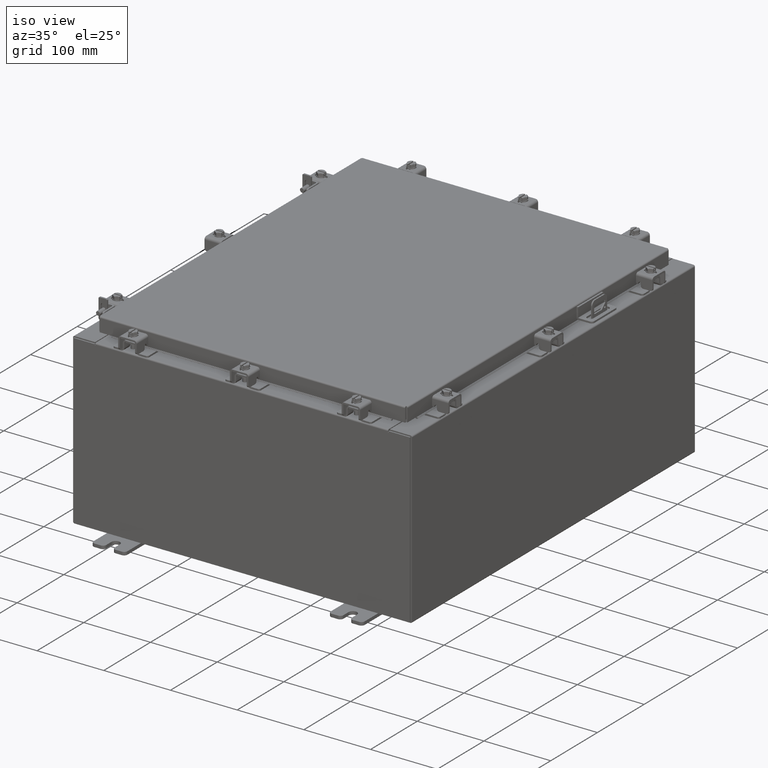
[diagram: clean part render]
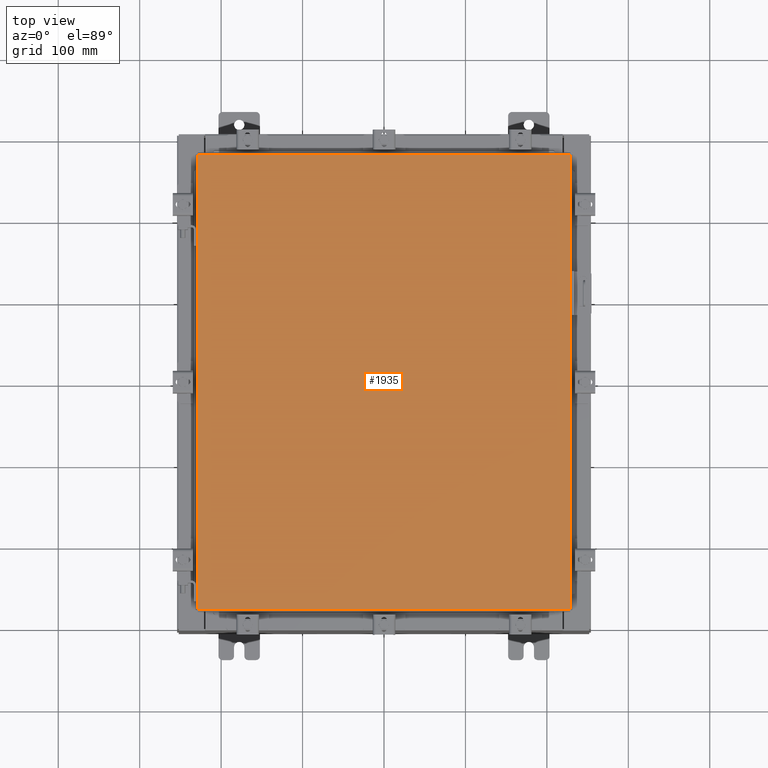
[diagram: tour spotlight — one face highlighted and labeled with its STEP entity id]
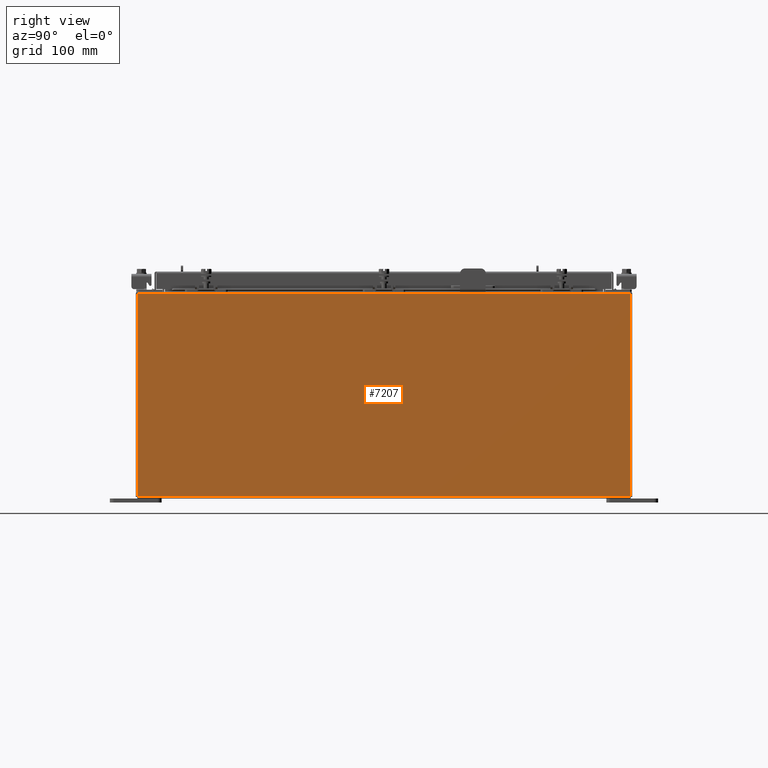
[diagram: tour spotlight — one face highlighted and labeled with its STEP entity id]
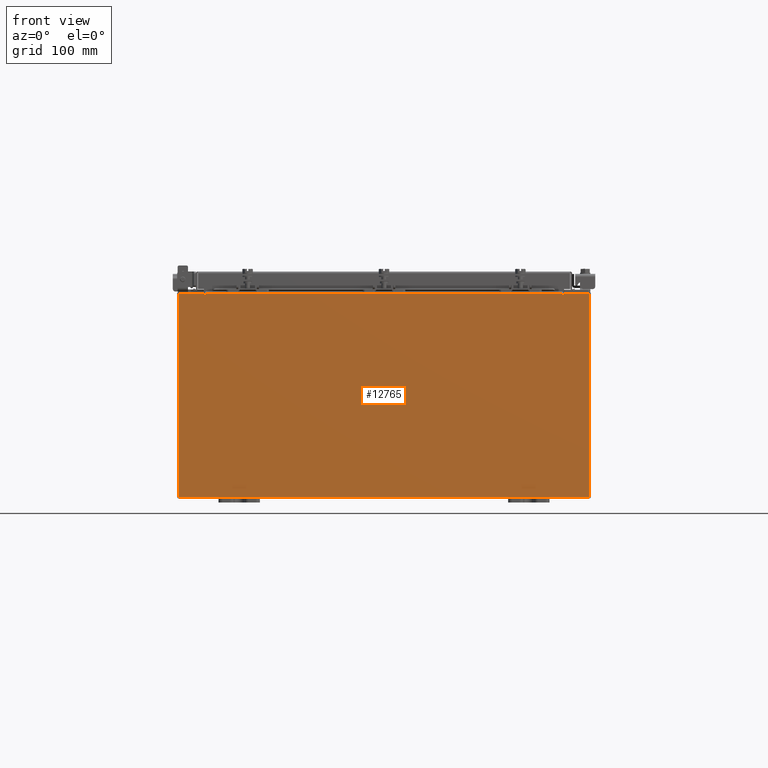
[diagram: tour spotlight — one face highlighted and labeled with its STEP entity id]
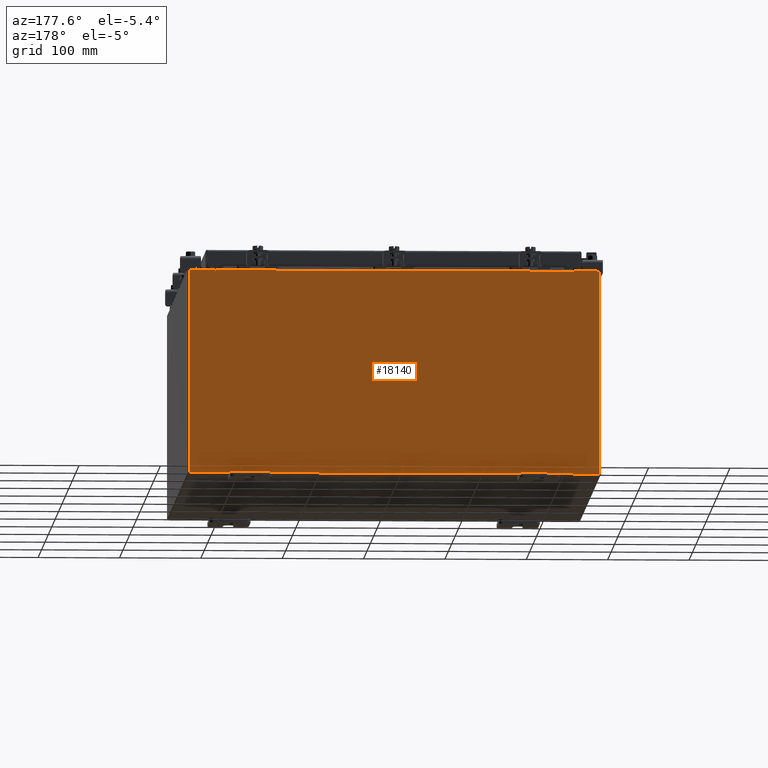
[diagram: tour spotlight — one face highlighted and labeled with its STEP entity id]
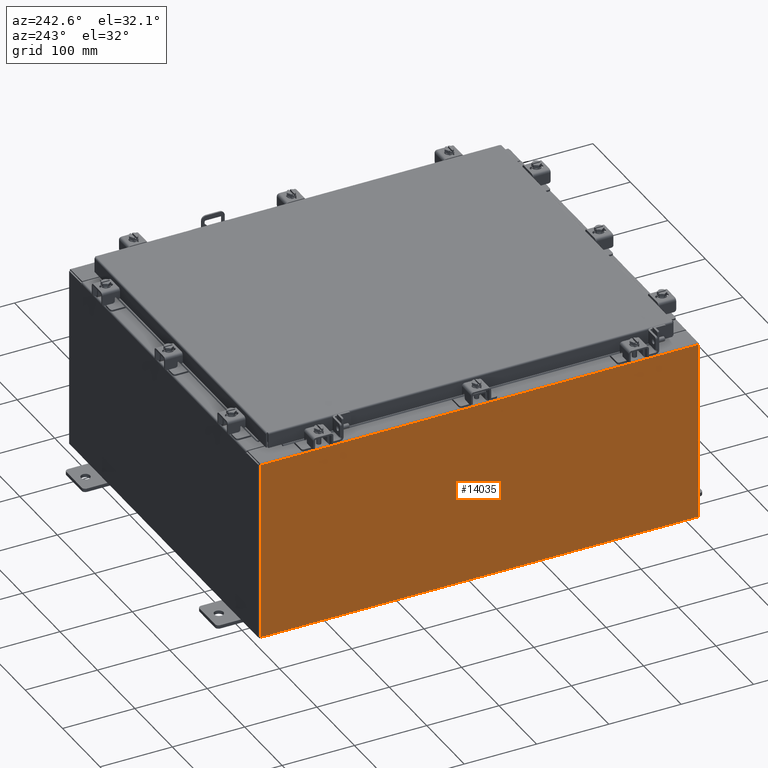
[diagram: tour spotlight — one face highlighted and labeled with its STEP entity id]
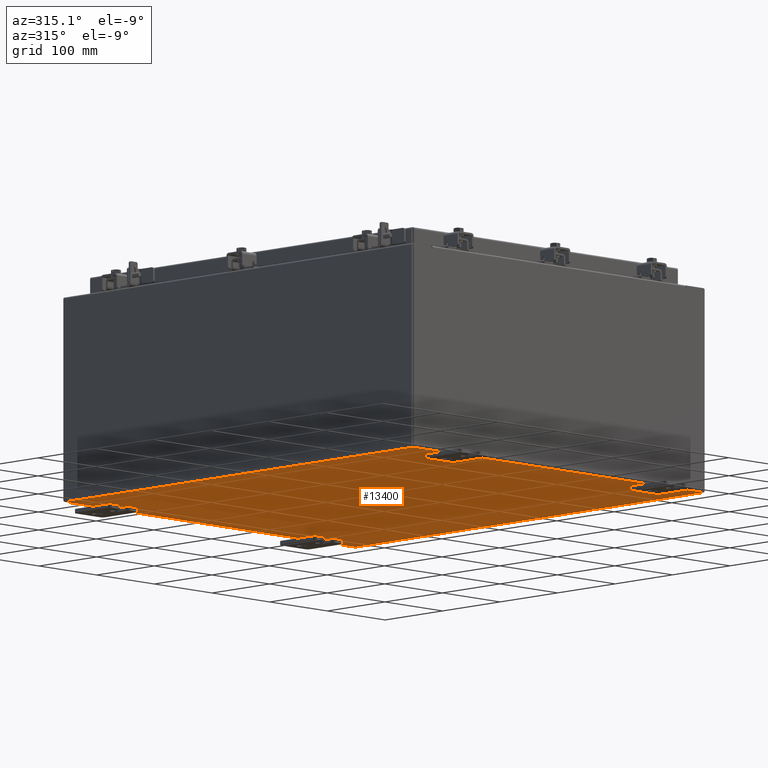
[diagram: tour spotlight — one face highlighted and labeled with its STEP entity id]
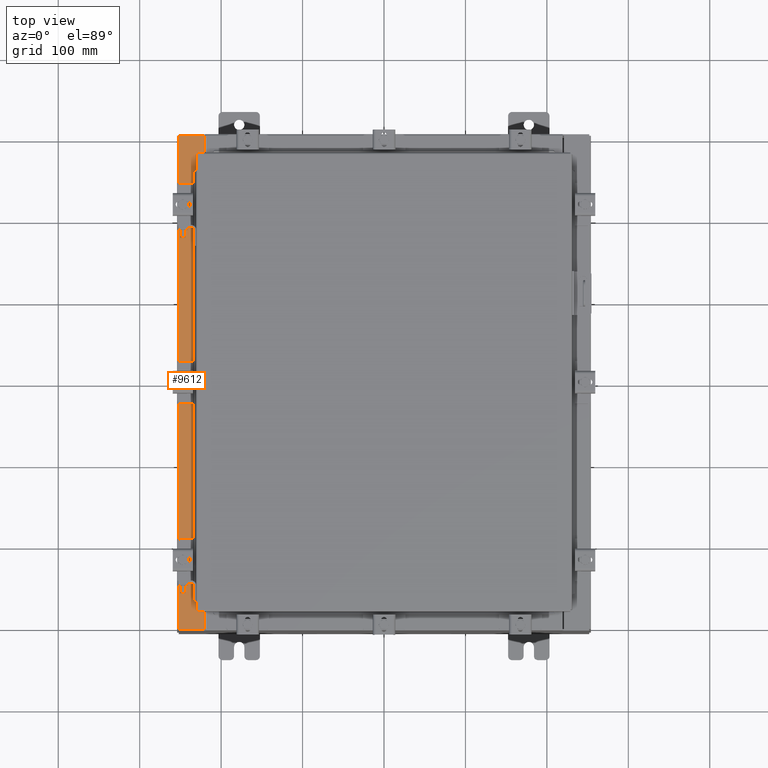
[diagram: tour spotlight — one face highlighted and labeled with its STEP entity id]
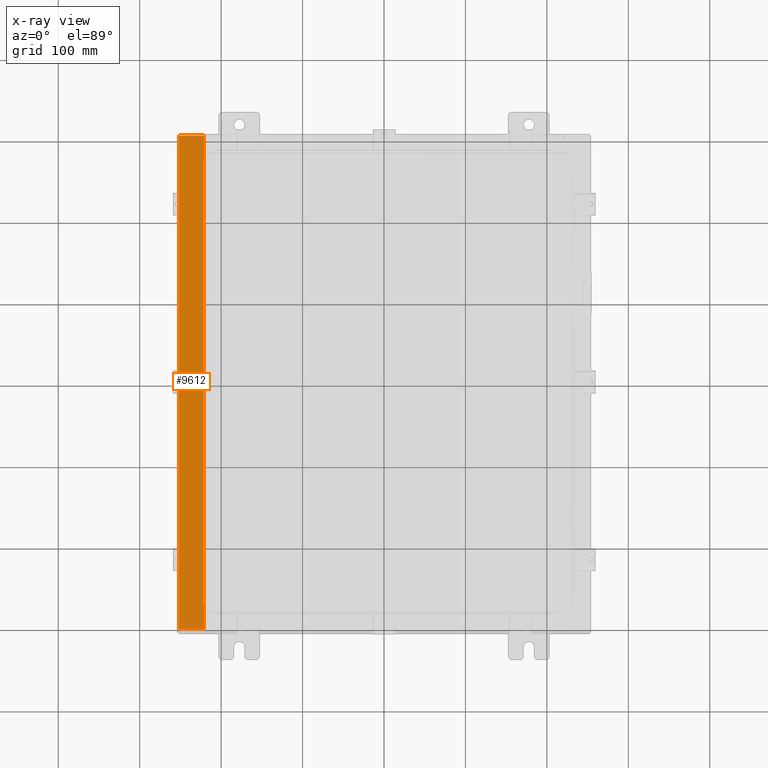
[diagram: x-ray of the same camera — body ghosted, this tour face saturated]
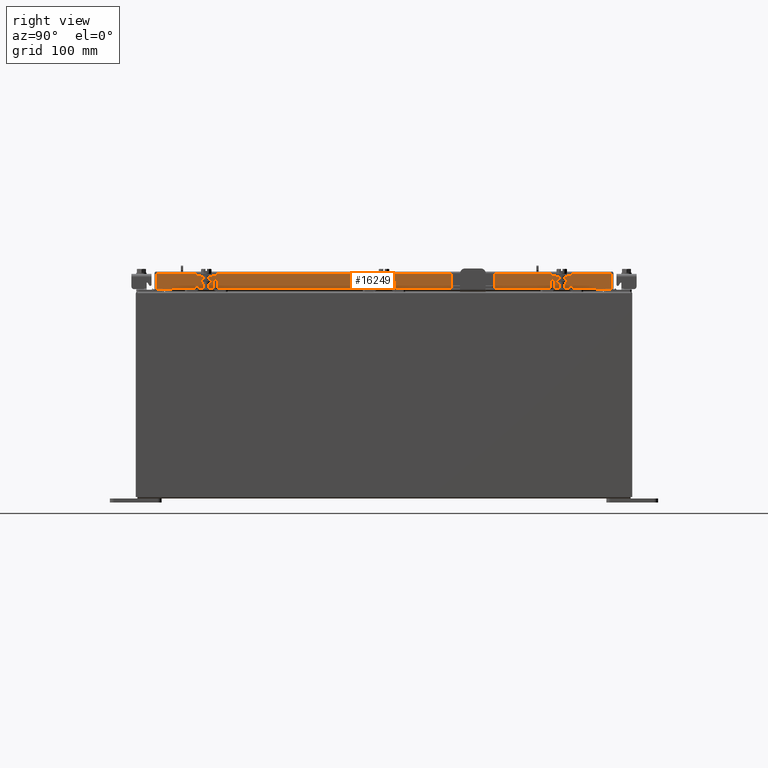
[diagram: tour spotlight — one face highlighted and labeled with its STEP entity id]
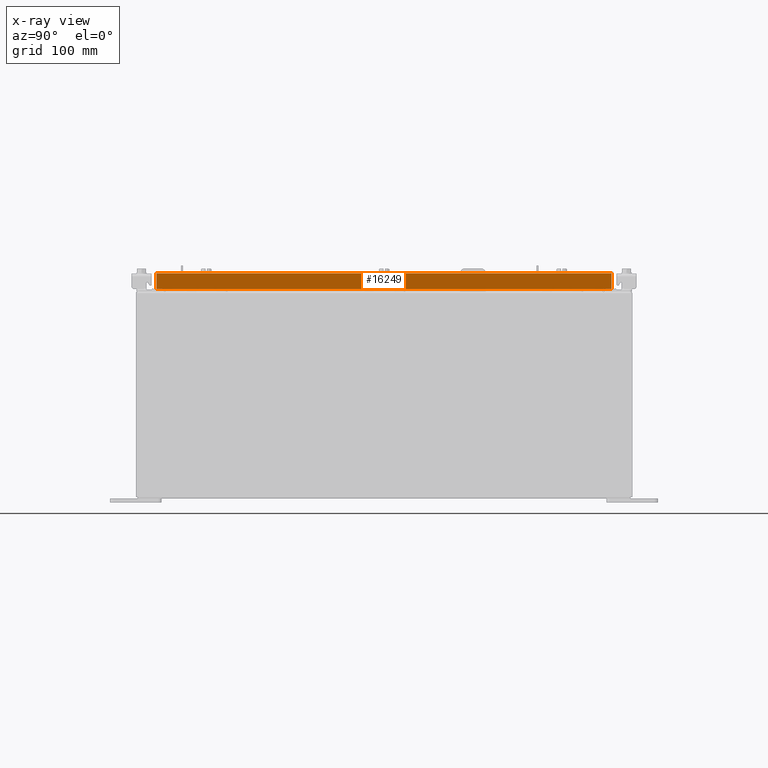
[diagram: x-ray of the same camera — body ghosted, this tour face saturated]
A machine part: a face-by-face anatomy tour. The part has 2018 B-rep faces; the first image is the clean iso view, then the 8 largest visible faces are spotlighted one at a time (largest first), each with its STEP entity span.

Face 1 — top view, entity #1935. In plain terms, the highlighted planar face has unit normal (0, 0, -1).
Definition (entity closure, byte-faithful):
#923 = ORIENTED_EDGE ( 'NONE', *, *, #17389, .T. ) ;
#1601 = LINE ( 'NONE', #12215, #18168 ) ;
#1674 = LINE ( 'NONE', #12349, #9265 ) ;
#1935 = ADVANCED_FACE ( 'NONE', ( #9648 ), #4971, .F. ) ;
#1937 = DIRECTION ( 'NONE',  ( -1.000000000000000000, 0.0000000000000000000, -0.0000000000000000000 ) ) ;
#2058 = DIRECTION ( 'NONE',  ( -1.000000000000000000, -0.0000000000000000000, -0.0000000000000000000 ) ) ;
#3133 = VERTEX_POINT ( 'NONE', #4618 ) ;
#3827 = ORIENTED_EDGE ( 'NONE', *, *, #16557, .T. ) ;
#3844 = VERTEX_POINT ( 'NONE', #18071 ) ;
#4400 = CARTESIAN_POINT ( 'NONE',  ( 0.0000000000000000000, 0.0000000000000000000, 0.0000000000000000000 ) ) ;
#4618 = CARTESIAN_POINT ( 'NONE',  ( -9.006300000000001300, -11.00629999999999600, 0.0000000000000000000 ) ) ;
#4655 = VECTOR ( 'NONE', #18412, 39.37007874015748100 ) ;
#4971 = PLANE ( 'NONE',  #8533 ) ;
#4991 = ORIENTED_EDGE ( 'NONE', *, *, #15932, .T. ) ;
#6776 = CARTESIAN_POINT ( 'NONE',  ( 9.006299999999997800, 11.00630000000000100, -2.185478394931410600E-015 ) ) ;
#8533 = AXIS2_PLACEMENT_3D ( 'NONE', #4400, #9163, #1937 ) ;
#8959 = LINE ( 'NONE', #10478, #4655 ) ;
#9163 = DIRECTION ( 'NONE',  ( 0.0000000000000000000, 0.0000000000000000000, -1.000000000000000000 ) ) ;
#9265 = VECTOR ( 'NONE', #18749, 39.37007874015748100 ) ;
#9427 = VERTEX_POINT ( 'NONE', #6776 ) ;
#9648 = FACE_OUTER_BOUND ( 'NONE', #12769, .T. ) ;
#10478 = CARTESIAN_POINT ( 'NONE',  ( 9.006299999999997800, -11.00629999999999600, 0.0000000000000000000 ) ) ;
#11499 = LINE ( 'NONE', #14892, #15185 ) ;
#12215 = CARTESIAN_POINT ( 'NONE',  ( -9.006300000000001300, -11.00629999999999600, 0.0000000000000000000 ) ) ;
#12349 = CARTESIAN_POINT ( 'NONE',  ( -9.006300000000001300, 11.00630000000000100, 0.0000000000000000000 ) ) ;
#12769 = EDGE_LOOP ( 'NONE', ( #923, #18093, #3827, #4991 ) ) ;
#13193 = CARTESIAN_POINT ( 'NONE',  ( 9.006299999999997800, -11.00629999999999600, 0.0000000000000000000 ) ) ;
#14892 = CARTESIAN_POINT ( 'NONE',  ( 9.006299999999997800, 11.00630000000000100, -2.185478394931410600E-015 ) ) ;
#15185 = VECTOR ( 'NONE', #2058, 39.37007874015748100 ) ;
#15932 = EDGE_CURVE ( 'NONE', #3844, #3133, #1674, .T. ) ;
#16557 = EDGE_CURVE ( 'NONE', #9427, #3844, #11499, .T. ) ;
#16721 = EDGE_CURVE ( 'NONE', #18545, #9427, #8959, .T. ) ;
#17389 = EDGE_CURVE ( 'NONE', #3133, #18545, #1601, .T. ) ;
#18071 = CARTESIAN_POINT ( 'NONE',  ( -9.006300000000001300, 11.00630000000000100, 0.0000000000000000000 ) ) ;
#18093 = ORIENTED_EDGE ( 'NONE', *, *, #16721, .T. ) ;
#18168 = VECTOR ( 'NONE', #18596, 39.37007874015748100 ) ;
#18412 = DIRECTION ( 'NONE',  ( 0.0000000000000000000, 1.000000000000000000, 0.0000000000000000000 ) ) ;
#18545 = VERTEX_POINT ( 'NONE', #13193 ) ;
#18596 = DIRECTION ( 'NONE',  ( 1.000000000000000000, -0.0000000000000000000, -0.0000000000000000000 ) ) ;
#18749 = DIRECTION ( 'NONE',  ( 0.0000000000000000000, -1.000000000000000000, 0.0000000000000000000 ) ) ;

Face 2 — right view, entity #7207. In plain terms, the highlighted planar face has unit normal (-1, 0, 0).
Definition (entity closure, byte-faithful):
#5 = ORIENTED_EDGE ( 'NONE', *, *, #7301, .T. ) ;
#3038 = LINE ( 'NONE', #13478, #20110 ) ;
#3151 = DIRECTION ( 'NONE',  ( -1.000000000000000000, 0.0000000000000000000, 3.523082860860887800E-015 ) ) ;
#4014 = CARTESIAN_POINT ( 'NONE',  ( 10.00000000000000000, -11.92530000000000000, -3.549164226462045900E-014 ) ) ;
#4259 = ORIENTED_EDGE ( 'NONE', *, *, #18725, .T. ) ;
#4359 = VERTEX_POINT ( 'NONE', #9633 ) ;
#4753 = EDGE_CURVE ( 'NONE', #14122, #8779, #19410, .T. ) ;
#5315 = DIRECTION ( 'NONE',  ( 3.523082860860888200E-015, -2.201926788038055100E-016, 1.000000000000000000 ) ) ;
#5458 = CARTESIAN_POINT ( 'NONE',  ( 10.00000000000003600, 11.92529999999999800, 9.837599999999994800 ) ) ;
#5496 = VERTEX_POINT ( 'NONE', #5458 ) ;
#7207 = ADVANCED_FACE ( 'NONE', ( #12669 ), #15972, .F. ) ;
#7301 = EDGE_CURVE ( 'NONE', #5496, #4359, #7357, .T. ) ;
#7357 = LINE ( 'NONE', #9896, #15387 ) ;
#7978 = CARTESIAN_POINT ( 'NONE',  ( 10.00000000000000000, 0.0000000000000000000, -3.549164226462045900E-014 ) ) ;
#8122 = VECTOR ( 'NONE', #18681, 39.37007874015748100 ) ;
#8481 = EDGE_CURVE ( 'NONE', #14122, #5496, #3038, .T. ) ;
#8720 = AXIS2_PLACEMENT_3D ( 'NONE', #7978, #3151, #14403 ) ;
#8779 = VERTEX_POINT ( 'NONE', #18940 ) ;
#8820 = CARTESIAN_POINT ( 'NONE',  ( 10.00000000000000000, 11.92529999999999800, 0.01299999999999984700 ) ) ;
#9633 = CARTESIAN_POINT ( 'NONE',  ( 10.00000000000003600, -11.92530000000000000, 9.837600000000001900 ) ) ;
#9896 = CARTESIAN_POINT ( 'NONE',  ( 10.00000000000003600, 11.92530000000000000, 9.837599999999994800 ) ) ;
#12669 = FACE_OUTER_BOUND ( 'NONE', #20337, .T. ) ;
#13478 = CARTESIAN_POINT ( 'NONE',  ( 10.00000000000000000, 11.92530000000000000, -3.286577851208143900E-014 ) ) ;
#14122 = VERTEX_POINT ( 'NONE', #8820 ) ;
#14390 = LINE ( 'NONE', #4014, #17659 ) ;
#14403 = DIRECTION ( 'NONE',  ( 3.523082860860887800E-015, 0.0000000000000000000, 1.000000000000000000 ) ) ;
#14665 = DIRECTION ( 'NONE',  ( -0.0000000000000000000, -1.000000000000000000, -0.0000000000000000000 ) ) ;
#15029 = ORIENTED_EDGE ( 'NONE', *, *, #8481, .T. ) ;
#15252 = DIRECTION ( 'NONE',  ( -3.523082860860888200E-015, 0.0000000000000000000, -1.000000000000000000 ) ) ;
#15387 = VECTOR ( 'NONE', #14665, 39.37007874015748100 ) ;
#15972 = PLANE ( 'NONE',  #8720 ) ;
#17076 = CARTESIAN_POINT ( 'NONE',  ( 10.00000000000000000, -11.92530000000000000, 0.01299999999999984700 ) ) ;
#17659 = VECTOR ( 'NONE', #15252, 39.37007874015748100 ) ;
#18681 = DIRECTION ( 'NONE',  ( -0.0000000000000000000, -1.000000000000000000, -0.0000000000000000000 ) ) ;
#18725 = EDGE_CURVE ( 'NONE', #4359, #8779, #14390, .T. ) ;
#18940 = CARTESIAN_POINT ( 'NONE',  ( 10.00000000000000000, -11.92530000000000000, 0.01299999999999984300 ) ) ;
#19410 = LINE ( 'NONE', #17076, #8122 ) ;
#20110 = VECTOR ( 'NONE', #5315, 39.37007874015748100 ) ;
#20337 = EDGE_LOOP ( 'NONE', ( #5, #4259, #20740, #15029 ) ) ;
#20740 = ORIENTED_EDGE ( 'NONE', *, *, #4753, .F. ) ;

Face 3 — front view, entity #12765. In plain terms, the highlighted planar face has unit normal (-0, 1, -0).
Definition (entity closure, byte-faithful):
#81 = DIRECTION ( 'NONE',  ( 1.000000000000000000, 0.0000000000000000000, 0.0000000000000000000 ) ) ;
#147 = EDGE_CURVE ( 'NONE', #12364, #20117, #2406, .T. ) ;
#312 = CARTESIAN_POINT ( 'NONE',  ( -9.925300000000000000, 0.0000000000000000000, 4.925300000000000000 ) ) ;
#329 = LINE ( 'NONE', #312, #20643 ) ;
#363 = DIRECTION ( 'NONE',  ( 0.0000000000000000000, 0.0000000000000000000, 1.000000000000000000 ) ) ;
#742 = CARTESIAN_POINT ( 'NONE',  ( -9.925300000000000000, 0.0000000000000000000, -4.925300000000000000 ) ) ;
#1216 = VERTEX_POINT ( 'NONE', #13866 ) ;
#1549 = DIRECTION ( 'NONE',  ( -0.0000000000000000000, 1.000000000000000000, -0.0000000000000000000 ) ) ;
#1777 = VECTOR ( 'NONE', #4103, 39.37007874015748100 ) ;
#1933 = CARTESIAN_POINT ( 'NONE',  ( -8.674549999999996400, 0.0000000000000000000, 4.925300000000000000 ) ) ;
#2053 = LINE ( 'NONE', #18086, #13371 ) ;
#2406 = LINE ( 'NONE', #5803, #18465 ) ;
#2419 = AXIS2_PLACEMENT_3D ( 'NONE', #11245, #1549, #12830 ) ;
#2715 = LINE ( 'NONE', #12738, #15014 ) ;
#3166 = ORIENTED_EDGE ( 'NONE', *, *, #9870, .T. ) ;
#3243 = ORIENTED_EDGE ( 'NONE', *, *, #5097, .T. ) ;
#3879 = ORIENTED_EDGE ( 'NONE', *, *, #16444, .F. ) ;
#3931 = PLANE ( 'NONE',  #14175 ) ;
#4103 = DIRECTION ( 'NONE',  ( 1.000000000000000000, 0.0000000000000000000, 0.0000000000000000000 ) ) ;
#4151 = DIRECTION ( 'NONE',  ( 0.0000000000000000000, 0.0000000000000000000, 1.000000000000000000 ) ) ;
#4657 = EDGE_LOOP ( 'NONE', ( #20665, #3879, #7038, #17051, #19769, #15768, #20115, #8670, #3243, #20307, #3166, #14040 ) ) ;
#4774 = VERTEX_POINT ( 'NONE', #9115 ) ;
#5097 = EDGE_CURVE ( 'NONE', #1216, #6018, #2053, .T. ) ;
#5376 = LINE ( 'NONE', #7309, #17686 ) ;
#5412 = LINE ( 'NONE', #6702, #15715 ) ;
#5536 = VERTEX_POINT ( 'NONE', #742 ) ;
#5635 = AXIS2_PLACEMENT_3D ( 'NONE', #17715, #8130, #19338 ) ;
#5803 = CARTESIAN_POINT ( 'NONE',  ( -9.925300000000000000, 0.0000000000000000000, 4.925300000000000000 ) ) ;
#6018 = VERTEX_POINT ( 'NONE', #17977 ) ;
#6023 = LINE ( 'NONE', #17571, #16315 ) ;
#6045 = LINE ( 'NONE', #6445, #14070 ) ;
#6257 = VERTEX_POINT ( 'NONE', #15476 ) ;
#6355 = CARTESIAN_POINT ( 'NONE',  ( -9.925300000000000000, 0.0000000000000000000, 4.925300000000000000 ) ) ;
#6445 = CARTESIAN_POINT ( 'NONE',  ( -9.925300000000000000, 0.0000000000000000000, -4.925300000000000000 ) ) ;
#6676 = DIRECTION ( 'NONE',  ( 0.0000000000000000000, 0.0000000000000000000, -1.000000000000000000 ) ) ;
#6702 = CARTESIAN_POINT ( 'NONE',  ( 8.674549999999683800, -0.0000000000000000000, -5.647877341832623900E-013 ) ) ;
#7038 = ORIENTED_EDGE ( 'NONE', *, *, #14946, .F. ) ;
#7309 = CARTESIAN_POINT ( 'NONE',  ( -8.674549999999996400, -0.0000000000000000000, 0.0000000000000000000 ) ) ;
#7489 = CARTESIAN_POINT ( 'NONE',  ( -8.637199999999996400, -7.171100983368691200E-016, 4.912300000000000100 ) ) ;
#8130 = DIRECTION ( 'NONE',  ( -0.0000000000000000000, 1.000000000000000000, -0.0000000000000000000 ) ) ;
#8398 = CARTESIAN_POINT ( 'NONE',  ( 8.637200000000000000, 0.0000000000000000000, 0.0000000000000000000 ) ) ;
#8670 = ORIENTED_EDGE ( 'NONE', *, *, #18542, .T. ) ;
#8824 = DIRECTION ( 'NONE',  ( 0.0000000000000000000, -1.000000000000000000, 0.0000000000000000000 ) ) ;
#9115 = CARTESIAN_POINT ( 'NONE',  ( -8.637199999999996400, -0.0000000000000000000, 4.874950000000000100 ) ) ;
#9158 = LINE ( 'NONE', #8398, #13391 ) ;
#9376 = EDGE_CURVE ( 'NONE', #6018, #5536, #6045, .T. ) ;
#9557 = CIRCLE ( 'NONE', #2419, 0.01867500000000003900 ) ;
#9578 = DIRECTION ( 'NONE',  ( 0.0000000000000000000, 0.0000000000000000000, -1.000000000000000000 ) ) ;
#9870 = EDGE_CURVE ( 'NONE', #5536, #12364, #6023, .T. ) ;
#9989 = DIRECTION ( 'NONE',  ( 1.000000000000000000, 0.0000000000000000000, 0.0000000000000000000 ) ) ;
#10452 = EDGE_CURVE ( 'NONE', #15467, #11971, #9557, .T. ) ;
#11245 = CARTESIAN_POINT ( 'NONE',  ( 8.655875000000000000, 0.0000000000000000000, 4.874950000000000100 ) ) ;
#11426 = VERTEX_POINT ( 'NONE', #16223 ) ;
#11777 = CARTESIAN_POINT ( 'NONE',  ( 8.637200000000000000, 0.0000000000000000000, 4.912300000000000100 ) ) ;
#11971 = VERTEX_POINT ( 'NONE', #14296 ) ;
#12364 = VERTEX_POINT ( 'NONE', #6355 ) ;
#12585 = EDGE_CURVE ( 'NONE', #11971, #19387, #9158, .T. ) ;
#12705 = CARTESIAN_POINT ( 'NONE',  ( 8.674550000000000000, 0.0000000000000000000, 4.874950000000000100 ) ) ;
#12738 = CARTESIAN_POINT ( 'NONE',  ( -8.637199999999996400, -0.0000000000000000000, 0.0000000000000000000 ) ) ;
#12765 = ADVANCED_FACE ( 'NONE', ( #14129 ), #3931, .F. ) ;
#12830 = DIRECTION ( 'NONE',  ( 0.0000000000000000000, 0.0000000000000000000, -1.000000000000000000 ) ) ;
#13371 = VECTOR ( 'NONE', #6676, 39.37007874015748100 ) ;
#13391 = VECTOR ( 'NONE', #363, 39.37007874015748100 ) ;
#13621 = EDGE_CURVE ( 'NONE', #20378, #19387, #16105, .T. ) ;
#13866 = CARTESIAN_POINT ( 'NONE',  ( 9.925300000000000000, 0.0000000000000000000, 4.925300000000000000 ) ) ;
#14040 = ORIENTED_EDGE ( 'NONE', *, *, #147, .T. ) ;
#14070 = VECTOR ( 'NONE', #19285, 39.37007874015748100 ) ;
#14129 = FACE_OUTER_BOUND ( 'NONE', #4657, .T. ) ;
#14175 = AXIS2_PLACEMENT_3D ( 'NONE', #16786, #8824, #19994 ) ;
#14296 = CARTESIAN_POINT ( 'NONE',  ( 8.637200000000000000, 0.0000000000000000000, 4.874950000000000100 ) ) ;
#14946 = EDGE_CURVE ( 'NONE', #20378, #4774, #2715, .T. ) ;
#15014 = VECTOR ( 'NONE', #9578, 39.37007874015748100 ) ;
#15332 = CARTESIAN_POINT ( 'NONE',  ( -8.637200000000000000, -7.171100983368691200E-016, 4.912300000000000100 ) ) ;
#15467 = VERTEX_POINT ( 'NONE', #12705 ) ;
#15476 = CARTESIAN_POINT ( 'NONE',  ( 8.674550000000001800, 0.0000000000000000000, 4.925300000000000000 ) ) ;
#15715 = VECTOR ( 'NONE', #16387, 39.37007874015748100 ) ;
#15768 = ORIENTED_EDGE ( 'NONE', *, *, #10452, .F. ) ;
#16105 = LINE ( 'NONE', #15332, #1777 ) ;
#16223 = CARTESIAN_POINT ( 'NONE',  ( -8.674549999999996400, 0.0000000000000000000, 4.874950000000000100 ) ) ;
#16315 = VECTOR ( 'NONE', #17447, 39.37007874015748100 ) ;
#16387 = DIRECTION ( 'NONE',  ( -6.510859170600007400E-014, 0.0000000000000000000, -1.000000000000000000 ) ) ;
#16444 = EDGE_CURVE ( 'NONE', #4774, #11426, #20215, .T. ) ;
#16530 = EDGE_CURVE ( 'NONE', #6257, #15467, #5412, .T. ) ;
#16786 = CARTESIAN_POINT ( 'NONE',  ( 0.0000000000000000000, 0.0000000000000000000, 0.0000000000000000000 ) ) ;
#17051 = ORIENTED_EDGE ( 'NONE', *, *, #13621, .T. ) ;
#17447 = DIRECTION ( 'NONE',  ( -0.0000000000000000000, -0.0000000000000000000, 1.000000000000000000 ) ) ;
#17571 = CARTESIAN_POINT ( 'NONE',  ( -9.925300000000000000, 0.0000000000000000000, 4.925300000000000000 ) ) ;
#17686 = VECTOR ( 'NONE', #4151, 39.37007874015748100 ) ;
#17715 = CARTESIAN_POINT ( 'NONE',  ( -8.655874999999996400, 0.0000000000000000000, 4.874950000000000100 ) ) ;
#17977 = CARTESIAN_POINT ( 'NONE',  ( 9.925300000000000000, 0.0000000000000000000, -4.925300000000000000 ) ) ;
#18086 = CARTESIAN_POINT ( 'NONE',  ( 9.925300000000000000, 0.0000000000000000000, 4.925300000000000000 ) ) ;
#18465 = VECTOR ( 'NONE', #81, 39.37007874015748100 ) ;
#18542 = EDGE_CURVE ( 'NONE', #6257, #1216, #329, .T. ) ;
#19002 = EDGE_CURVE ( 'NONE', #11426, #20117, #5376, .T. ) ;
#19285 = DIRECTION ( 'NONE',  ( -1.000000000000000000, -0.0000000000000000000, -0.0000000000000000000 ) ) ;
#19338 = DIRECTION ( 'NONE',  ( 0.0000000000000000000, 0.0000000000000000000, -1.000000000000000000 ) ) ;
#19387 = VERTEX_POINT ( 'NONE', #11777 ) ;
#19769 = ORIENTED_EDGE ( 'NONE', *, *, #12585, .F. ) ;
#19994 = DIRECTION ( 'NONE',  ( 0.0000000000000000000, -0.0000000000000000000, -1.000000000000000000 ) ) ;
#20115 = ORIENTED_EDGE ( 'NONE', *, *, #16530, .F. ) ;
#20117 = VERTEX_POINT ( 'NONE', #1933 ) ;
#20215 = CIRCLE ( 'NONE', #5635, 0.01867500000000003900 ) ;
#20307 = ORIENTED_EDGE ( 'NONE', *, *, #9376, .T. ) ;
#20378 = VERTEX_POINT ( 'NONE', #7489 ) ;
#20643 = VECTOR ( 'NONE', #9989, 39.37007874015748100 ) ;
#20665 = ORIENTED_EDGE ( 'NONE', *, *, #19002, .F. ) ;

Face 4 — auxiliary view, entity #18140. In plain terms, the highlighted planar face has unit normal (0, -1, 0).
Definition (entity closure, byte-faithful):
#216 = DIRECTION ( 'NONE',  ( 1.000000000000000000, 0.0000000000000000000, 0.0000000000000000000 ) ) ;
#435 = ORIENTED_EDGE ( 'NONE', *, *, #8319, .F. ) ;
#666 = DIRECTION ( 'NONE',  ( 1.000000000000000000, 0.0000000000000000000, 0.0000000000000000000 ) ) ;
#1316 = AXIS2_PLACEMENT_3D ( 'NONE', #14714, #5108, #16349 ) ;
#1668 = VECTOR ( 'NONE', #14778, 39.37007874015748100 ) ;
#1979 = VECTOR ( 'NONE', #16382, 39.37007874015748100 ) ;
#2112 = ORIENTED_EDGE ( 'NONE', *, *, #12112, .T. ) ;
#2144 = EDGE_CURVE ( 'NONE', #11992, #10017, #10904, .T. ) ;
#2304 = VECTOR ( 'NONE', #18217, 39.37007874015748100 ) ;
#2450 = CARTESIAN_POINT ( 'NONE',  ( -8.637199999999996400, -0.0000000000000000000, 4.874950000000000100 ) ) ;
#2977 = VERTEX_POINT ( 'NONE', #15133 ) ;
#3386 = CARTESIAN_POINT ( 'NONE',  ( -8.674549999999996400, -0.0000000000000000000, 0.0000000000000000000 ) ) ;
#3508 = VERTEX_POINT ( 'NONE', #13733 ) ;
#3546 = CARTESIAN_POINT ( 'NONE',  ( 9.925300000000000000, 0.0000000000000000000, 4.925300000000000000 ) ) ;
#4495 = VERTEX_POINT ( 'NONE', #17969 ) ;
#4587 = VECTOR ( 'NONE', #18782, 39.37007874015748100 ) ;
#4679 = CARTESIAN_POINT ( 'NONE',  ( 8.637200000000000000, 0.0000000000000000000, 0.0000000000000000000 ) ) ;
#4978 = DIRECTION ( 'NONE',  ( 0.0000000000000000000, 0.0000000000000000000, -1.000000000000000000 ) ) ;
#5065 = LINE ( 'NONE', #18599, #16889 ) ;
#5070 = LINE ( 'NONE', #17459, #8896 ) ;
#5108 = DIRECTION ( 'NONE',  ( -0.0000000000000000000, 1.000000000000000000, -0.0000000000000000000 ) ) ;
#5202 = VECTOR ( 'NONE', #4978, 39.37007874015748100 ) ;
#5506 = DIRECTION ( 'NONE',  ( -0.0000000000000000000, 1.000000000000000000, -0.0000000000000000000 ) ) ;
#5674 = EDGE_CURVE ( 'NONE', #3508, #2977, #20124, .T. ) ;
#5698 = ORIENTED_EDGE ( 'NONE', *, *, #2144, .F. ) ;
#5729 = ORIENTED_EDGE ( 'NONE', *, *, #18277, .T. ) ;
#6485 = EDGE_LOOP ( 'NONE', ( #5698, #435, #11905, #2112, #15911, #7300, #7724, #19268, #13888, #20575, #5729, #17230 ) ) ;
#6759 = CARTESIAN_POINT ( 'NONE',  ( -9.925300000000000000, 0.0000000000000000000, -4.925300000000000000 ) ) ;
#7300 = ORIENTED_EDGE ( 'NONE', *, *, #18687, .F. ) ;
#7568 = CARTESIAN_POINT ( 'NONE',  ( 8.674549999999683800, -0.0000000000000000000, -5.647877341832623900E-013 ) ) ;
#7724 = ORIENTED_EDGE ( 'NONE', *, *, #5674, .F. ) ;
#7731 = CARTESIAN_POINT ( 'NONE',  ( -9.925300000000000000, 0.0000000000000000000, 4.925300000000000000 ) ) ;
#7875 = CARTESIAN_POINT ( 'NONE',  ( 9.925300000000000000, 0.0000000000000000000, -4.925300000000000000 ) ) ;
#8196 = LINE ( 'NONE', #18279, #15726 ) ;
#8291 = VECTOR ( 'NONE', #15987, 39.37007874015748100 ) ;
#8319 = EDGE_CURVE ( 'NONE', #8561, #11992, #10630, .T. ) ;
#8561 = VERTEX_POINT ( 'NONE', #2450 ) ;
#8896 = VECTOR ( 'NONE', #11058, 39.37007874015748100 ) ;
#9537 = LINE ( 'NONE', #19398, #5202 ) ;
#9863 = EDGE_CURVE ( 'NONE', #17135, #15329, #12592, .T. ) ;
#9972 = CARTESIAN_POINT ( 'NONE',  ( 9.925300000000000000, 0.0000000000000000000, 4.925300000000000000 ) ) ;
#10007 = EDGE_CURVE ( 'NONE', #19846, #15901, #13306, .T. ) ;
#10017 = VERTEX_POINT ( 'NONE', #11668 ) ;
#10630 = CIRCLE ( 'NONE', #1316, 0.01867500000000003900 ) ;
#10852 = DIRECTION ( 'NONE',  ( 0.0000000000000000000, -0.0000000000000000000, -1.000000000000000000 ) ) ;
#10904 = LINE ( 'NONE', #3386, #2304 ) ;
#10938 = EDGE_CURVE ( 'NONE', #4495, #8561, #9537, .T. ) ;
#10972 = LINE ( 'NONE', #11529, #14655 ) ;
#11058 = DIRECTION ( 'NONE',  ( -0.0000000000000000000, -0.0000000000000000000, 1.000000000000000000 ) ) ;
#11207 = CIRCLE ( 'NONE', #19909, 0.01867500000000003900 ) ;
#11501 = EDGE_CURVE ( 'NONE', #12561, #19846, #13990, .T. ) ;
#11529 = CARTESIAN_POINT ( 'NONE',  ( -9.925300000000000000, 0.0000000000000000000, 4.925300000000000000 ) ) ;
#11668 = CARTESIAN_POINT ( 'NONE',  ( -8.674549999999996400, 0.0000000000000000000, 4.925300000000000000 ) ) ;
#11905 = ORIENTED_EDGE ( 'NONE', *, *, #10938, .F. ) ;
#11992 = VERTEX_POINT ( 'NONE', #19144 ) ;
#12112 = EDGE_CURVE ( 'NONE', #4495, #15329, #8196, .T. ) ;
#12370 = CARTESIAN_POINT ( 'NONE',  ( 8.637200000000000000, 0.0000000000000000000, 4.912300000000000100 ) ) ;
#12561 = VERTEX_POINT ( 'NONE', #9972 ) ;
#12592 = LINE ( 'NONE', #4679, #8291 ) ;
#12835 = EDGE_CURVE ( 'NONE', #3508, #12561, #5065, .T. ) ;
#13306 = LINE ( 'NONE', #6759, #1979 ) ;
#13733 = CARTESIAN_POINT ( 'NONE',  ( 8.674550000000001800, 0.0000000000000000000, 4.925300000000000000 ) ) ;
#13888 = ORIENTED_EDGE ( 'NONE', *, *, #11501, .T. ) ;
#13958 = PLANE ( 'NONE',  #19368 ) ;
#13990 = LINE ( 'NONE', #3546, #1668 ) ;
#14612 = FACE_OUTER_BOUND ( 'NONE', #6485, .T. ) ;
#14655 = VECTOR ( 'NONE', #216, 39.37007874015748100 ) ;
#14714 = CARTESIAN_POINT ( 'NONE',  ( -8.655874999999996400, 0.0000000000000000000, 4.874950000000000100 ) ) ;
#14778 = DIRECTION ( 'NONE',  ( 0.0000000000000000000, 0.0000000000000000000, -1.000000000000000000 ) ) ;
#15108 = CARTESIAN_POINT ( 'NONE',  ( 8.655875000000000000, 0.0000000000000000000, 4.874950000000000100 ) ) ;
#15133 = CARTESIAN_POINT ( 'NONE',  ( 8.674550000000000000, 0.0000000000000000000, 4.874950000000000100 ) ) ;
#15329 = VERTEX_POINT ( 'NONE', #12370 ) ;
#15570 = CARTESIAN_POINT ( 'NONE',  ( 0.0000000000000000000, 0.0000000000000000000, 0.0000000000000000000 ) ) ;
#15726 = VECTOR ( 'NONE', #666, 39.37007874015748100 ) ;
#15901 = VERTEX_POINT ( 'NONE', #18677 ) ;
#15911 = ORIENTED_EDGE ( 'NONE', *, *, #9863, .F. ) ;
#15987 = DIRECTION ( 'NONE',  ( 0.0000000000000000000, 0.0000000000000000000, 1.000000000000000000 ) ) ;
#16349 = DIRECTION ( 'NONE',  ( 0.0000000000000000000, 0.0000000000000000000, -1.000000000000000000 ) ) ;
#16382 = DIRECTION ( 'NONE',  ( -1.000000000000000000, -0.0000000000000000000, -0.0000000000000000000 ) ) ;
#16441 = CARTESIAN_POINT ( 'NONE',  ( 8.637200000000000000, 0.0000000000000000000, 4.874950000000000100 ) ) ;
#16744 = DIRECTION ( 'NONE',  ( 0.0000000000000000000, 0.0000000000000000000, -1.000000000000000000 ) ) ;
#16889 = VECTOR ( 'NONE', #20204, 39.37007874015748100 ) ;
#17103 = EDGE_CURVE ( 'NONE', #18259, #10017, #10972, .T. ) ;
#17135 = VERTEX_POINT ( 'NONE', #16441 ) ;
#17230 = ORIENTED_EDGE ( 'NONE', *, *, #17103, .T. ) ;
#17459 = CARTESIAN_POINT ( 'NONE',  ( -9.925300000000000000, 0.0000000000000000000, 4.925300000000000000 ) ) ;
#17969 = CARTESIAN_POINT ( 'NONE',  ( -8.637199999999996400, -7.171100983368691200E-016, 4.912300000000000100 ) ) ;
#18140 = ADVANCED_FACE ( 'NONE', ( #14612 ), #13958, .F. ) ;
#18217 = DIRECTION ( 'NONE',  ( 0.0000000000000000000, 0.0000000000000000000, 1.000000000000000000 ) ) ;
#18259 = VERTEX_POINT ( 'NONE', #7731 ) ;
#18277 = EDGE_CURVE ( 'NONE', #15901, #18259, #5070, .T. ) ;
#18279 = CARTESIAN_POINT ( 'NONE',  ( -8.637200000000000000, -7.171100983368691200E-016, 4.912300000000000100 ) ) ;
#18599 = CARTESIAN_POINT ( 'NONE',  ( -9.925300000000000000, 0.0000000000000000000, 4.925300000000000000 ) ) ;
#18677 = CARTESIAN_POINT ( 'NONE',  ( -9.925300000000000000, 0.0000000000000000000, -4.925300000000000000 ) ) ;
#18687 = EDGE_CURVE ( 'NONE', #2977, #17135, #11207, .T. ) ;
#18782 = DIRECTION ( 'NONE',  ( -6.510859170600007400E-014, 0.0000000000000000000, -1.000000000000000000 ) ) ;
#19144 = CARTESIAN_POINT ( 'NONE',  ( -8.674549999999996400, 0.0000000000000000000, 4.874950000000000100 ) ) ;
#19268 = ORIENTED_EDGE ( 'NONE', *, *, #12835, .T. ) ;
#19368 = AXIS2_PLACEMENT_3D ( 'NONE', #15570, #20380, #10852 ) ;
#19398 = CARTESIAN_POINT ( 'NONE',  ( -8.637199999999996400, -0.0000000000000000000, 0.0000000000000000000 ) ) ;
#19846 = VERTEX_POINT ( 'NONE', #7875 ) ;
#19909 = AXIS2_PLACEMENT_3D ( 'NONE', #15108, #5506, #16744 ) ;
#20124 = LINE ( 'NONE', #7568, #4587 ) ;
#20204 = DIRECTION ( 'NONE',  ( 1.000000000000000000, 0.0000000000000000000, 0.0000000000000000000 ) ) ;
#20380 = DIRECTION ( 'NONE',  ( 0.0000000000000000000, -1.000000000000000000, 0.0000000000000000000 ) ) ;
#20575 = ORIENTED_EDGE ( 'NONE', *, *, #10007, .T. ) ;

Face 5 — auxiliary view, entity #14035. In plain terms, the highlighted planar face has unit normal (1, 0, 0).
Definition (entity closure, byte-faithful):
#26 = DIRECTION ( 'NONE',  ( 0.0000000000000000000, 1.000000000000000000, 0.0000000000000000000 ) ) ;
#1122 = ORIENTED_EDGE ( 'NONE', *, *, #4117, .F. ) ;
#1793 = VECTOR ( 'NONE', #7564, 39.37007874015748100 ) ;
#1908 = DIRECTION ( 'NONE',  ( 3.523082860860888200E-015, 0.0000000000000000000, -1.000000000000000000 ) ) ;
#2157 = EDGE_CURVE ( 'NONE', #15559, #16358, #14097, .T. ) ;
#3706 = CARTESIAN_POINT ( 'NONE',  ( -10.00000000000000000, 0.0000000000000000000, -3.549164226462045900E-014 ) ) ;
#4117 = EDGE_CURVE ( 'NONE', #15559, #12956, #20170, .T. ) ;
#5393 = EDGE_LOOP ( 'NONE', ( #12581, #19671, #1122, #12236 ) ) ;
#6432 = CARTESIAN_POINT ( 'NONE',  ( -10.00000000000003600, -11.92530000000000000, 9.837599999999998300 ) ) ;
#7564 = DIRECTION ( 'NONE',  ( -3.523082860860888200E-015, 0.0000000000000000000, 1.000000000000000000 ) ) ;
#8053 = VECTOR ( 'NONE', #1908, 39.37007874015748100 ) ;
#8593 = DIRECTION ( 'NONE',  ( 1.000000000000000000, 0.0000000000000000000, 3.523082860860887800E-015 ) ) ;
#11127 = CARTESIAN_POINT ( 'NONE',  ( -10.00000000000003600, -11.92529999999999500, 9.837599999999998300 ) ) ;
#11853 = FACE_OUTER_BOUND ( 'NONE', #5393, .T. ) ;
#12094 = VERTEX_POINT ( 'NONE', #18207 ) ;
#12236 = ORIENTED_EDGE ( 'NONE', *, *, #2157, .T. ) ;
#12258 = VECTOR ( 'NONE', #26, 39.37007874015748100 ) ;
#12367 = LINE ( 'NONE', #16304, #8053 ) ;
#12581 = ORIENTED_EDGE ( 'NONE', *, *, #16433, .T. ) ;
#12956 = VERTEX_POINT ( 'NONE', #14312 ) ;
#13599 = CARTESIAN_POINT ( 'NONE',  ( -10.00000000000000000, 11.92530000000000000, 0.01299999999999984700 ) ) ;
#13979 = EDGE_CURVE ( 'NONE', #12094, #12956, #12367, .T. ) ;
#14035 = ADVANCED_FACE ( 'NONE', ( #11853 ), #18180, .F. ) ;
#14097 = LINE ( 'NONE', #16428, #1793 ) ;
#14312 = CARTESIAN_POINT ( 'NONE',  ( -10.00000000000000000, 11.92530000000000000, 0.01299999999999984300 ) ) ;
#15410 = AXIS2_PLACEMENT_3D ( 'NONE', #3706, #8593, #19795 ) ;
#15559 = VERTEX_POINT ( 'NONE', #16242 ) ;
#15943 = VECTOR ( 'NONE', #18428, 39.37007874015748100 ) ;
#16242 = CARTESIAN_POINT ( 'NONE',  ( -10.00000000000000000, -11.92529999999999800, 0.01299999999999984700 ) ) ;
#16304 = CARTESIAN_POINT ( 'NONE',  ( -10.00000000000000000, 11.92530000000000000, -3.549164226462045900E-014 ) ) ;
#16358 = VERTEX_POINT ( 'NONE', #11127 ) ;
#16428 = CARTESIAN_POINT ( 'NONE',  ( -10.00000000000000000, -11.92530000000000000, -3.549164226462045900E-014 ) ) ;
#16433 = EDGE_CURVE ( 'NONE', #16358, #12094, #16469, .T. ) ;
#16469 = LINE ( 'NONE', #6432, #12258 ) ;
#18180 = PLANE ( 'NONE',  #15410 ) ;
#18207 = CARTESIAN_POINT ( 'NONE',  ( -10.00000000000003600, 11.92530000000000000, 9.837599999999998300 ) ) ;
#18428 = DIRECTION ( 'NONE',  ( -0.0000000000000000000, 1.000000000000000000, -0.0000000000000000000 ) ) ;
#19671 = ORIENTED_EDGE ( 'NONE', *, *, #13979, .T. ) ;
#19795 = DIRECTION ( 'NONE',  ( 3.523082860860887800E-015, 0.0000000000000000000, -1.000000000000000000 ) ) ;
#20170 = LINE ( 'NONE', #13599, #15943 ) ;

Face 6 — auxiliary view, entity #13400. In plain terms, the highlighted planar face has unit normal (0, 0, -1).
Definition (entity closure, byte-faithful):
#25 = VECTOR ( 'NONE', #13890, 39.37007874015748100 ) ;
#1472 = VECTOR ( 'NONE', #11168, 39.37007874015748100 ) ;
#1525 = VERTEX_POINT ( 'NONE', #12009 ) ;
#1715 = CARTESIAN_POINT ( 'NONE',  ( 9.912300000000000100, 11.92529999999999800, -0.07469999999999994700 ) ) ;
#2787 = LINE ( 'NONE', #9843, #10911 ) ;
#3209 = EDGE_CURVE ( 'NONE', #8132, #1525, #6900, .T. ) ;
#3367 = DIRECTION ( 'NONE',  ( -1.000000000000000000, -0.0000000000000000000, -0.0000000000000000000 ) ) ;
#5953 = EDGE_CURVE ( 'NONE', #6683, #1525, #2787, .T. ) ;
#6125 = CARTESIAN_POINT ( 'NONE',  ( -9.912300000000000100, -11.92529999999999800, -0.07469999999999994700 ) ) ;
#6683 = VERTEX_POINT ( 'NONE', #1715 ) ;
#6900 = LINE ( 'NONE', #7199, #14931 ) ;
#6946 = VERTEX_POINT ( 'NONE', #18544 ) ;
#7199 = CARTESIAN_POINT ( 'NONE',  ( -9.912300000000000100, -11.92530000000000000, -0.07469999999999994700 ) ) ;
#7442 = CARTESIAN_POINT ( 'NONE',  ( -10.00000000000000000, -11.92530000000000000, -0.07470000000000000300 ) ) ;
#8132 = VERTEX_POINT ( 'NONE', #6125 ) ;
#8594 = LINE ( 'NONE', #7442, #25 ) ;
#8687 = EDGE_CURVE ( 'NONE', #8132, #6946, #8594, .T. ) ;
#8811 = ORIENTED_EDGE ( 'NONE', *, *, #10425, .T. ) ;
#8923 = DIRECTION ( 'NONE',  ( -0.0000000000000000000, 1.000000000000000000, -0.0000000000000000000 ) ) ;
#9019 = CARTESIAN_POINT ( 'NONE',  ( 0.0000000000000000000, 0.0000000000000000000, -0.07470000000000000300 ) ) ;
#9843 = CARTESIAN_POINT ( 'NONE',  ( -10.00000000000000000, 11.92530000000000000, -0.07470000000000000300 ) ) ;
#9855 = DIRECTION ( 'NONE',  ( 0.0000000000000000000, 0.0000000000000000000, -1.000000000000000000 ) ) ;
#10425 = EDGE_CURVE ( 'NONE', #6683, #6946, #14274, .T. ) ;
#10911 = VECTOR ( 'NONE', #3367, 39.37007874015748100 ) ;
#11118 = ORIENTED_EDGE ( 'NONE', *, *, #5953, .F. ) ;
#11168 = DIRECTION ( 'NONE',  ( -0.0000000000000000000, -1.000000000000000000, -0.0000000000000000000 ) ) ;
#12009 = CARTESIAN_POINT ( 'NONE',  ( -9.912300000000000100, 11.92530000000000000, -0.07470000000000000300 ) ) ;
#12890 = ORIENTED_EDGE ( 'NONE', *, *, #8687, .F. ) ;
#13178 = ORIENTED_EDGE ( 'NONE', *, *, #3209, .T. ) ;
#13400 = ADVANCED_FACE ( 'NONE', ( #15354 ), #13810, .T. ) ;
#13810 = PLANE ( 'NONE',  #17679 ) ;
#13890 = DIRECTION ( 'NONE',  ( 1.000000000000000000, 0.0000000000000000000, 0.0000000000000000000 ) ) ;
#14274 = LINE ( 'NONE', #20685, #1472 ) ;
#14931 = VECTOR ( 'NONE', #8923, 39.37007874015748100 ) ;
#15354 = FACE_OUTER_BOUND ( 'NONE', #17488, .T. ) ;
#17488 = EDGE_LOOP ( 'NONE', ( #12890, #13178, #11118, #8811 ) ) ;
#17679 = AXIS2_PLACEMENT_3D ( 'NONE', #9019, #9855, #18057 ) ;
#18057 = DIRECTION ( 'NONE',  ( -1.000000000000000000, 0.0000000000000000000, -0.0000000000000000000 ) ) ;
#18544 = CARTESIAN_POINT ( 'NONE',  ( 9.912300000000000100, -11.92530000000000000, -0.07470000000000000300 ) ) ;
#20685 = CARTESIAN_POINT ( 'NONE',  ( 9.912300000000000100, 11.92530000000000000, -0.07469999999999994700 ) ) ;

Face 7 — top view, entity #9612. An x-ray twin of the same camera follows (body ghosted, this face saturated) — the face is partly hidden behind the body. In plain terms, the highlighted planar face has unit normal (0, 0, -1).
Definition (entity closure, byte-faithful):
#319 = LINE ( 'NONE', #3242, #4602 ) ;
#463 = CARTESIAN_POINT ( 'NONE',  ( -8.699700000000035500, 10.63110000000000200, 9.925300000000007100 ) ) ;
#514 = EDGE_CURVE ( 'NONE', #16161, #6227, #1631, .T. ) ;
#617 = CARTESIAN_POINT ( 'NONE',  ( -8.712700000000035400, -10.59374999999999300, 9.925300000000007100 ) ) ;
#703 = ORIENTED_EDGE ( 'NONE', *, *, #5499, .F. ) ;
#983 = DIRECTION ( 'NONE',  ( -6.427586101948161900E-031, 1.000000000000000000, -4.584644437783652100E-045 ) ) ;
#1177 = VERTEX_POINT ( 'NONE', #14219 ) ;
#1225 = ORIENTED_EDGE ( 'NONE', *, *, #1523, .T. ) ;
#1281 = CARTESIAN_POINT ( 'NONE',  ( -8.750050000000037200, 10.61242500000000000, 9.925300000000007100 ) ) ;
#1513 = DIRECTION ( 'NONE',  ( -0.0000000000000000000, 1.000000000000000000, -0.0000000000000000000 ) ) ;
#1523 = EDGE_CURVE ( 'NONE', #4552, #15035, #7889, .T. ) ;
#1631 = LINE ( 'NONE', #5264, #10222 ) ;
#1699 = VERTEX_POINT ( 'NONE', #7929 ) ;
#2267 = LINE ( 'NONE', #7015, #10356 ) ;
#2335 = CIRCLE ( 'NONE', #17574, 0.01867499999999949400 ) ;
#2534 = DIRECTION ( 'NONE',  ( 1.000000000000000000, 0.0000000000000000000, 0.0000000000000000000 ) ) ;
#2868 = DIRECTION ( 'NONE',  ( 1.000000000000000000, 0.0000000000000000000, 0.0000000000000000000 ) ) ;
#3102 = CARTESIAN_POINT ( 'NONE',  ( -8.750050000000037200, 10.63109999999999800, 9.925300000000005300 ) ) ;
#3184 = ORIENTED_EDGE ( 'NONE', *, *, #19648, .F. ) ;
#3242 = CARTESIAN_POINT ( 'NONE',  ( -8.699700000000035500, 10.63110000000000200, 9.925300000000007100 ) ) ;
#3833 = LINE ( 'NONE', #4351, #4361 ) ;
#4196 = ORIENTED_EDGE ( 'NONE', *, *, #8626, .T. ) ;
#4332 = VERTEX_POINT ( 'NONE', #3102 ) ;
#4351 = CARTESIAN_POINT ( 'NONE',  ( -8.712700000000035400, 10.59375000000000200, 9.925300000000007100 ) ) ;
#4361 = VECTOR ( 'NONE', #18796, 39.37007874015748100 ) ;
#4440 = DIRECTION ( 'NONE',  ( 1.000000000000000000, 0.0000000000000000000, 0.0000000000000000000 ) ) ;
#4552 = VERTEX_POINT ( 'NONE', #5272 ) ;
#4602 = VECTOR ( 'NONE', #4892, 39.37007874015748100 ) ;
#4695 = ORIENTED_EDGE ( 'NONE', *, *, #514, .F. ) ;
#4712 = ORIENTED_EDGE ( 'NONE', *, *, #8702, .T. ) ;
#4868 = EDGE_CURVE ( 'NONE', #14077, #15035, #14127, .T. ) ;
#4892 = DIRECTION ( 'NONE',  ( -1.000000000000000000, -4.340572780399910900E-014, 0.0000000000000000000 ) ) ;
#5259 = FACE_OUTER_BOUND ( 'NONE', #16193, .T. ) ;
#5264 = CARTESIAN_POINT ( 'NONE',  ( -8.712700000000035400, -10.59374999999999300, 9.925300000000007100 ) ) ;
#5272 = CARTESIAN_POINT ( 'NONE',  ( -8.699700000000035500, -11.92529999999999500, 9.925300000000007100 ) ) ;
#5299 = LINE ( 'NONE', #10645, #13360 ) ;
#5499 = EDGE_CURVE ( 'NONE', #6227, #14077, #2335, .T. ) ;
#5746 = CARTESIAN_POINT ( 'NONE',  ( -7.105562016127552700E-014, 0.0000000000000000000, 9.925300000000067500 ) ) ;
#5832 = EDGE_CURVE ( 'NONE', #13580, #13812, #18115, .T. ) ;
#5965 = CARTESIAN_POINT ( 'NONE',  ( -4.979053734218649800E-014, -11.92529999999998000, 9.925300000000067500 ) ) ;
#6227 = VERTEX_POINT ( 'NONE', #20144 ) ;
#6320 = ORIENTED_EDGE ( 'NONE', *, *, #17373, .F. ) ;
#7015 = CARTESIAN_POINT ( 'NONE',  ( -7.105562016127552700E-014, 11.92530000000000000, 9.925300000000067500 ) ) ;
#7439 = DIRECTION ( 'NONE',  ( -1.000000000000000000, 0.0000000000000000000, 0.0000000000000000000 ) ) ;
#7889 = LINE ( 'NONE', #13707, #14378 ) ;
#7920 = CARTESIAN_POINT ( 'NONE',  ( -9.912300000000035600, 11.92530000000000000, 9.925299999999998200 ) ) ;
#7929 = CARTESIAN_POINT ( 'NONE',  ( -8.699700000000035500, 11.92530000000000000, 9.925300000000007100 ) ) ;
#8085 = VECTOR ( 'NONE', #15573, 39.37007874015748100 ) ;
#8110 = EDGE_CURVE ( 'NONE', #4332, #1177, #8853, .T. ) ;
#8626 = EDGE_CURVE ( 'NONE', #16099, #1699, #5299, .T. ) ;
#8702 = EDGE_CURVE ( 'NONE', #13580, #4552, #16615, .T. ) ;
#8719 = CARTESIAN_POINT ( 'NONE',  ( -8.750050000000037200, -10.61242499999999300, 9.925300000000007100 ) ) ;
#8853 = CIRCLE ( 'NONE', #17191, 0.01867499999999949400 ) ;
#9612 = ADVANCED_FACE ( 'NONE', ( #5259 ), #16971, .F. ) ;
#9730 = CARTESIAN_POINT ( 'NONE',  ( -8.699700000000035500, -10.63109999999999300, 9.925300000000007100 ) ) ;
#9854 = ORIENTED_EDGE ( 'NONE', *, *, #8110, .F. ) ;
#10222 = VECTOR ( 'NONE', #7439, 39.37007874015748100 ) ;
#10235 = DIRECTION ( 'NONE',  ( -1.000000000000000000, -1.633973368572597200E-031, -7.132762385546378400E-015 ) ) ;
#10355 = DIRECTION ( 'NONE',  ( 1.000000000000000000, 0.0000000000000000000, 0.0000000000000000000 ) ) ;
#10356 = VECTOR ( 'NONE', #10235, 39.37007874015748100 ) ;
#10598 = CARTESIAN_POINT ( 'NONE',  ( -8.750050000000037200, 10.59375000000000000, 9.925300000000007100 ) ) ;
#10634 = DIRECTION ( 'NONE',  ( -1.000000000000000000, 0.0000000000000000000, -7.132762385546378400E-015 ) ) ;
#10645 = CARTESIAN_POINT ( 'NONE',  ( -8.699700000000035500, -5.591807081111819100E-030, 9.925300000000007100 ) ) ;
#11203 = CARTESIAN_POINT ( 'NONE',  ( -9.912300000000035600, 11.92530000000000000, 9.925299999999998200 ) ) ;
#11798 = DIRECTION ( 'NONE',  ( -6.427586101948161900E-031, 1.000000000000000000, -4.584644437783652100E-045 ) ) ;
#12549 = DIRECTION ( 'NONE',  ( -7.132762385546378400E-015, -0.0000000000000000000, 1.000000000000000000 ) ) ;
#13147 = VECTOR ( 'NONE', #4440, 39.37007874015748100 ) ;
#13360 = VECTOR ( 'NONE', #983, 39.37007874015748100 ) ;
#13580 = VERTEX_POINT ( 'NONE', #18420 ) ;
#13707 = CARTESIAN_POINT ( 'NONE',  ( -8.699700000000035500, -5.591807081111819100E-030, 9.925300000000007100 ) ) ;
#13812 = VERTEX_POINT ( 'NONE', #7920 ) ;
#13867 = VECTOR ( 'NONE', #1513, 39.37007874015748100 ) ;
#14077 = VERTEX_POINT ( 'NONE', #19853 ) ;
#14079 = EDGE_CURVE ( 'NONE', #1699, #13812, #2267, .T. ) ;
#14127 = LINE ( 'NONE', #18899, #13147 ) ;
#14219 = CARTESIAN_POINT ( 'NONE',  ( -8.750050000000037200, 10.59375000000000000, 9.925300000000005300 ) ) ;
#14378 = VECTOR ( 'NONE', #11798, 39.37007874015748100 ) ;
#14407 = VECTOR ( 'NONE', #2534, 39.37007874015748100 ) ;
#15010 = ORIENTED_EDGE ( 'NONE', *, *, #14079, .T. ) ;
#15035 = VERTEX_POINT ( 'NONE', #9730 ) ;
#15573 = DIRECTION ( 'NONE',  ( 1.000000000000000000, 1.783190596386595000E-015, 7.132762385546378400E-015 ) ) ;
#15862 = AXIS2_PLACEMENT_3D ( 'NONE', #5746, #20171, #10634 ) ;
#16099 = VERTEX_POINT ( 'NONE', #463 ) ;
#16161 = VERTEX_POINT ( 'NONE', #617 ) ;
#16193 = EDGE_LOOP ( 'NONE', ( #16966, #4196, #15010, #19652, #4712, #1225, #18088, #703, #4695, #3184, #6320, #9854 ) ) ;
#16615 = LINE ( 'NONE', #5965, #8085 ) ;
#16966 = ORIENTED_EDGE ( 'NONE', *, *, #19995, .F. ) ;
#16971 = PLANE ( 'NONE',  #15862 ) ;
#17191 = AXIS2_PLACEMENT_3D ( 'NONE', #1281, #12549, #2868 ) ;
#17373 = EDGE_CURVE ( 'NONE', #1177, #19878, #19186, .T. ) ;
#17533 = CARTESIAN_POINT ( 'NONE',  ( -8.712700000000035400, 10.59375000000000000, 9.925300000000007100 ) ) ;
#17574 = AXIS2_PLACEMENT_3D ( 'NONE', #8719, #19894, #10355 ) ;
#18088 = ORIENTED_EDGE ( 'NONE', *, *, #4868, .F. ) ;
#18115 = LINE ( 'NONE', #11203, #13867 ) ;
#18420 = CARTESIAN_POINT ( 'NONE',  ( -9.912300000000035600, -11.92529999999999600, 9.925299999999998200 ) ) ;
#18796 = DIRECTION ( 'NONE',  ( -0.0000000000000000000, -1.000000000000000000, -0.0000000000000000000 ) ) ;
#18899 = CARTESIAN_POINT ( 'NONE',  ( -8.750050000000037200, -10.63109999999999300, 9.925300000000007100 ) ) ;
#19186 = LINE ( 'NONE', #10598, #14407 ) ;
#19648 = EDGE_CURVE ( 'NONE', #19878, #16161, #3833, .T. ) ;
#19652 = ORIENTED_EDGE ( 'NONE', *, *, #5832, .F. ) ;
#19853 = CARTESIAN_POINT ( 'NONE',  ( -8.750050000000037200, -10.63109999999999300, 9.925300000000005300 ) ) ;
#19878 = VERTEX_POINT ( 'NONE', #17533 ) ;
#19894 = DIRECTION ( 'NONE',  ( -7.132762385546378400E-015, -0.0000000000000000000, 1.000000000000000000 ) ) ;
#19995 = EDGE_CURVE ( 'NONE', #16099, #4332, #319, .T. ) ;
#20144 = CARTESIAN_POINT ( 'NONE',  ( -8.750050000000037200, -10.59374999999999300, 9.925300000000005300 ) ) ;
#20171 = DIRECTION ( 'NONE',  ( 7.132762385546378400E-015, 0.0000000000000000000, -1.000000000000000000 ) ) ;

Face 8 — right view, entity #16249. An x-ray twin of the same camera follows (body ghosted, this face saturated) — the face is partly hidden behind the body. In plain terms, the highlighted planar face has unit normal (1, 0, 0).
Definition (entity closure, byte-faithful):
#146 = FACE_OUTER_BOUND ( 'NONE', #4270, .T. ) ;
#277 = CARTESIAN_POINT ( 'NONE',  ( 9.093999999999997600, -11.00515786437626400, -0.08770000000000026400 ) ) ;
#957 = DIRECTION ( 'NONE',  ( -2.818880942772360100E-015, -6.982962677686267500E-015, 1.000000000000000000 ) ) ;
#993 = ORIENTED_EDGE ( 'NONE', *, *, #13760, .T. ) ;
#1497 = ORIENTED_EDGE ( 'NONE', *, *, #14576, .T. ) ;
#2684 = VERTEX_POINT ( 'NONE', #4070 ) ;
#2687 = CARTESIAN_POINT ( 'NONE',  ( 9.093999999999999400, 11.00515786437627800, -0.8499999999999999800 ) ) ;
#3156 = VECTOR ( 'NONE', #17747, 39.37007874015748100 ) ;
#3759 = CARTESIAN_POINT ( 'NONE',  ( 9.093999999999997600, 11.00515786437627100, 1.027174845617763000E-013 ) ) ;
#4070 = CARTESIAN_POINT ( 'NONE',  ( 9.093999999999995900, -10.25515786437626400, -0.8499999999999999800 ) ) ;
#4258 = PLANE ( 'NONE',  #6025 ) ;
#4270 = EDGE_LOOP ( 'NONE', ( #8731, #8047, #10685, #5016, #1497, #993 ) ) ;
#4354 = LINE ( 'NONE', #17020, #16656 ) ;
#4910 = CARTESIAN_POINT ( 'NONE',  ( 9.093999999999999400, -11.09399999999999900, -0.8499999999999999800 ) ) ;
#5016 = ORIENTED_EDGE ( 'NONE', *, *, #11396, .F. ) ;
#5407 = DIRECTION ( 'NONE',  ( -2.818880942772360100E-015, -6.982962677686267500E-015, 1.000000000000000000 ) ) ;
#5877 = VECTOR ( 'NONE', #6986, 39.37007874015748100 ) ;
#6025 = AXIS2_PLACEMENT_3D ( 'NONE', #15505, #17115, #7501 ) ;
#6368 = LINE ( 'NONE', #18225, #5877 ) ;
#6964 = EDGE_CURVE ( 'NONE', #10610, #10579, #4354, .T. ) ;
#6986 = DIRECTION ( 'NONE',  ( 0.0000000000000000000, -1.000000000000000000, 0.0000000000000000000 ) ) ;
#7400 = VECTOR ( 'NONE', #10386, 39.37007874015748100 ) ;
#7501 = DIRECTION ( 'NONE',  ( 2.818880942772360100E-015, 0.0000000000000000000, -1.000000000000000000 ) ) ;
#7825 = LINE ( 'NONE', #17302, #15848 ) ;
#8047 = ORIENTED_EDGE ( 'NONE', *, *, #17898, .F. ) ;
#8665 = CARTESIAN_POINT ( 'NONE',  ( 9.093999999999995900, 10.25515786437627200, -0.8499999999999999800 ) ) ;
#8731 = ORIENTED_EDGE ( 'NONE', *, *, #6964, .F. ) ;
#10386 = DIRECTION ( 'NONE',  ( 0.0000000000000000000, -1.000000000000000000, 0.0000000000000000000 ) ) ;
#10579 = VERTEX_POINT ( 'NONE', #277 ) ;
#10610 = VERTEX_POINT ( 'NONE', #11638 ) ;
#10685 = ORIENTED_EDGE ( 'NONE', *, *, #17289, .F. ) ;
#11396 = EDGE_CURVE ( 'NONE', #18807, #14602, #20240, .T. ) ;
#11638 = CARTESIAN_POINT ( 'NONE',  ( 9.093999999999999400, -11.00515786437626000, -0.8499999999999999800 ) ) ;
#11713 = LINE ( 'NONE', #16727, #7400 ) ;
#12571 = CARTESIAN_POINT ( 'NONE',  ( 9.093999999999997600, 11.00515786437627200, -0.08770000000000026400 ) ) ;
#13555 = VECTOR ( 'NONE', #5407, 39.37007874015748100 ) ;
#13760 = EDGE_CURVE ( 'NONE', #15415, #10579, #7825, .T. ) ;
#14044 = LINE ( 'NONE', #3759, #13555 ) ;
#14202 = DIRECTION ( 'NONE',  ( 0.0000000000000000000, -1.000000000000000000, 0.0000000000000000000 ) ) ;
#14576 = EDGE_CURVE ( 'NONE', #18807, #15415, #14044, .T. ) ;
#14602 = VERTEX_POINT ( 'NONE', #8665 ) ;
#15415 = VERTEX_POINT ( 'NONE', #12571 ) ;
#15505 = CARTESIAN_POINT ( 'NONE',  ( 9.093999999999997600, 0.0000000000000000000, 2.622574073917692700E-014 ) ) ;
#15848 = VECTOR ( 'NONE', #14202, 39.37007874015748100 ) ;
#16249 = ADVANCED_FACE ( 'NONE', ( #146 ), #4258, .T. ) ;
#16656 = VECTOR ( 'NONE', #957, 39.37007874015748100 ) ;
#16727 = CARTESIAN_POINT ( 'NONE',  ( 9.093999999999995900, 10.25515786437627200, -0.8499999999999999800 ) ) ;
#17020 = CARTESIAN_POINT ( 'NONE',  ( 9.093999999999997600, -11.00515786437626400, -0.07470000000000015500 ) ) ;
#17115 = DIRECTION ( 'NONE',  ( 1.000000000000000000, 0.0000000000000000000, 2.818880942772360100E-015 ) ) ;
#17289 = EDGE_CURVE ( 'NONE', #14602, #2684, #11713, .T. ) ;
#17302 = CARTESIAN_POINT ( 'NONE',  ( 9.093999999999997600, 0.0000000000000000000, -0.08770000000000026400 ) ) ;
#17747 = DIRECTION ( 'NONE',  ( 0.0000000000000000000, -1.000000000000000000, 0.0000000000000000000 ) ) ;
#17898 = EDGE_CURVE ( 'NONE', #2684, #10610, #6368, .T. ) ;
#18225 = CARTESIAN_POINT ( 'NONE',  ( 9.093999999999999400, -11.09399999999999900, -0.8499999999999999800 ) ) ;
#18807 = VERTEX_POINT ( 'NONE', #2687 ) ;
#20240 = LINE ( 'NONE', #4910, #3156 ) ;